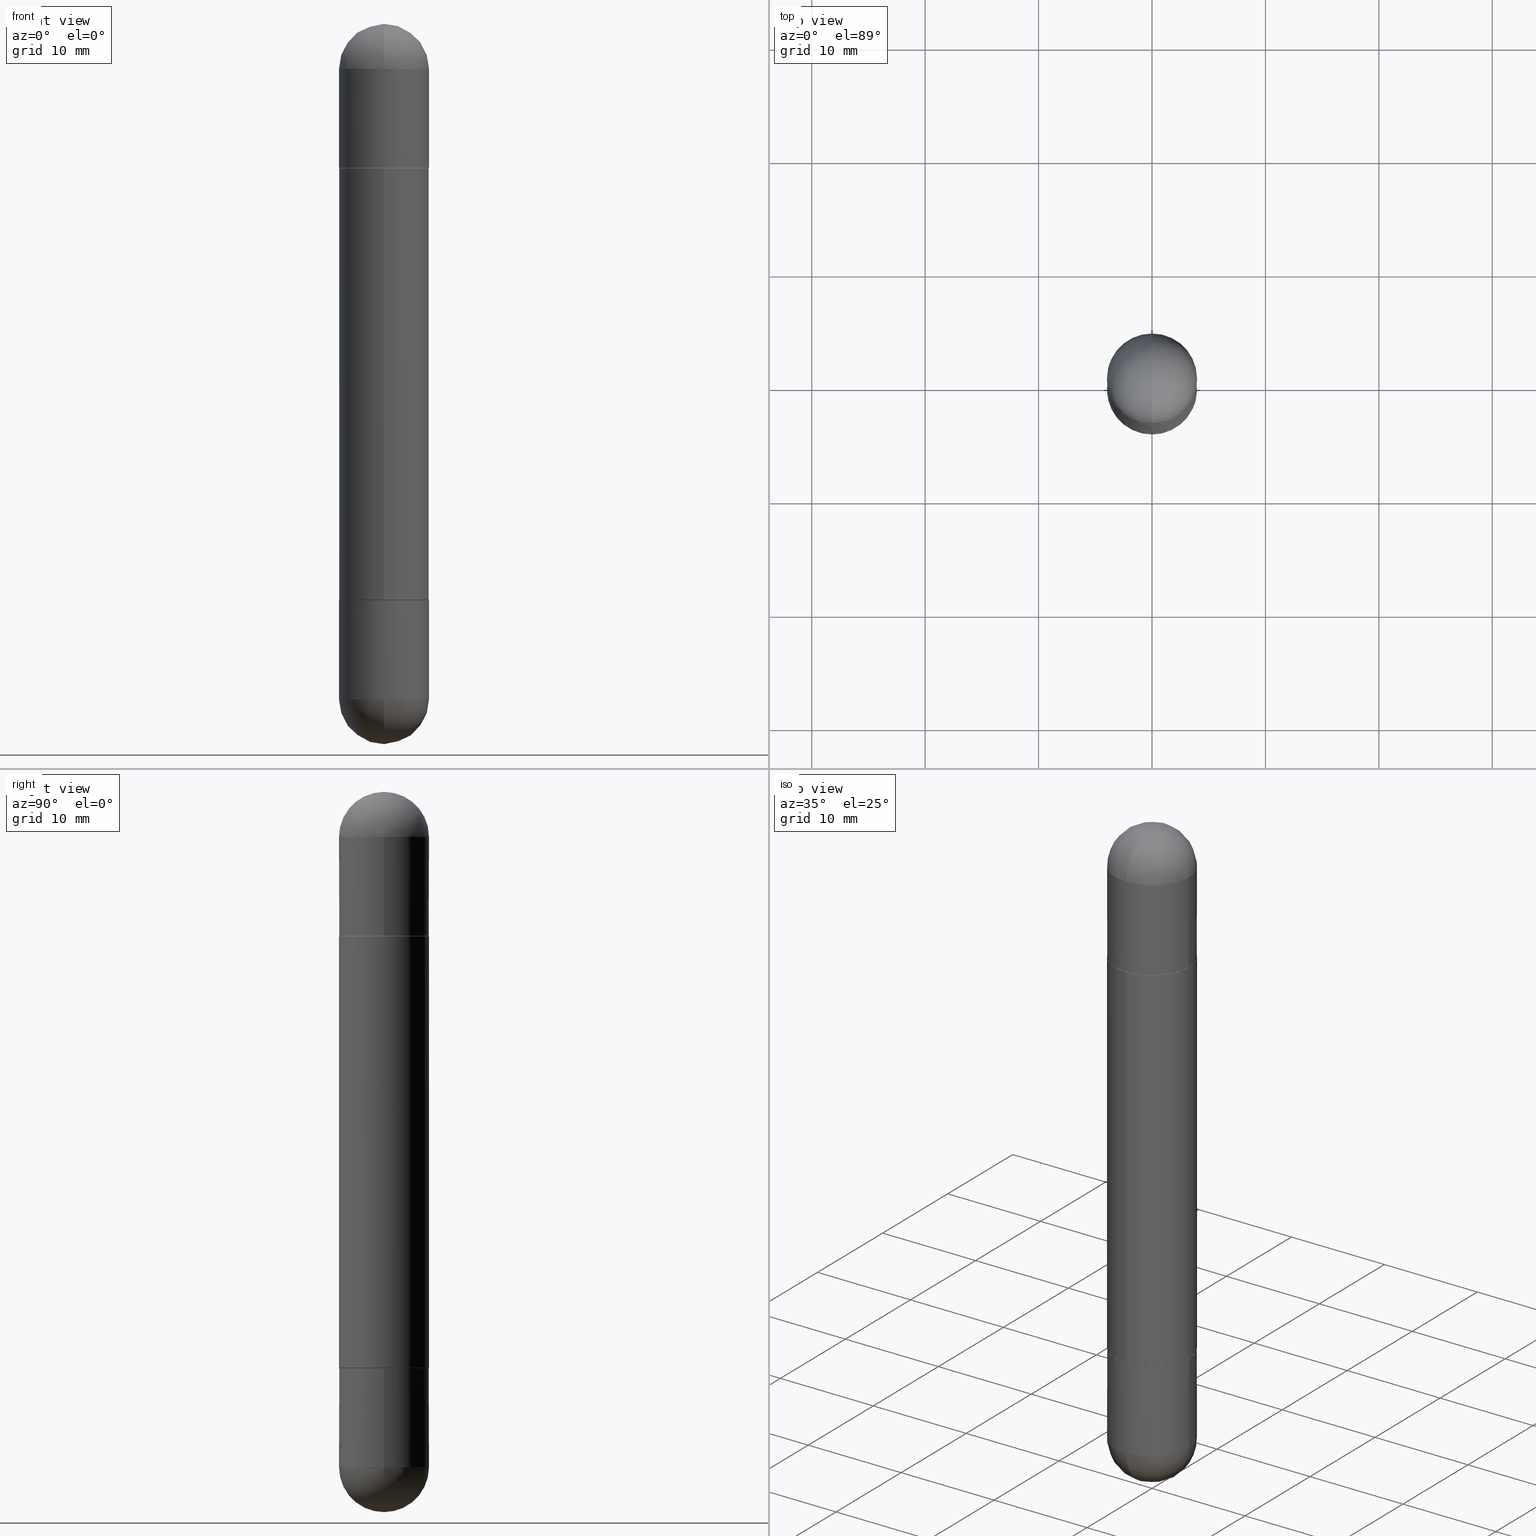
[diagram: canonical four-view strip — front | top / right | iso, engineering-drawing reading convention]
A machine part, canonical four-view strip (front | top / right | iso — engineering-drawing reading convention). The complete STEP part file that produces these views, byte-faithful:
ISO-10303-21;
HEADER;
FILE_DESCRIPTION (( 'STEP AP203' ),
    '1' );
FILE_NAME ('31434.STEP',
    '2024-03-01T12:41:45',
    ( '' ),
    ( '' ),
    'SwSTEP 2.0',
    'SolidWorks 2023',
    '' );
FILE_SCHEMA (( 'CONFIG_CONTROL_DESIGN' ));
ENDSEC;

DATA;
#1 = VERTEX_POINT ( 'NONE', #408 ) ;
#2 = EDGE_CURVE ( 'NONE', #657, #92, #762, .T. ) ;
#3 = LINE ( 'NONE', #633, #66 ) ;
#4 = EDGE_CURVE ( 'NONE', #322, #37, #410, .T. ) ;
#5 = ORIENTED_EDGE ( 'NONE', *, *, #4, .F. ) ;
#6 = AXIS2_PLACEMENT_3D ( 'NONE', #73, #405, #706 ) ;
#7 = FACE_OUTER_BOUND ( 'NONE', #117, .T. ) ;
#8 = CIRCLE ( 'NONE', #326, 0.1562500000000000000 ) ;
#9 = CONICAL_SURFACE ( 'NONE', #479, 0.1552499999999999991, 0.7853981633974141952 ) ;
#10 = ORIENTED_EDGE ( 'NONE', *, *, #284, .F. ) ;
#11 = DIRECTION ( 'NONE',  ( 2.445468806185136597E-29, -3.491481338843145583E-15, 1.000000000000000000 ) ) ;
#12 = EDGE_CURVE ( 'NONE', #739, #597, #514, .T. ) ;
#13 = FACE_OUTER_BOUND ( 'NONE', #234, .T. ) ;
#14 = CALENDAR_DATE ( 2024, 1, 3 ) ;
#15 = PRODUCT_DEFINITION ( 'UNKNOWN', '', #136, #331 ) ;
#16 = CARTESIAN_POINT ( 'NONE',  ( 5.731567514496413899E-29, -8.183159387913622595E-15, -0.1562500000000005551 ) ) ;
#17 = CARTESIAN_POINT ( 'NONE',  ( 5.400447736582527652E-29, -8.657341756053672891E-15, -0.1562500000000005551 ) ) ;
#18 = CARTESIAN_POINT ( 'NONE',  ( 4.890937612370273194E-29, -6.982962677686291165E-15, -0.5000000000000006661 ) ) ;
#19 = CONICAL_SURFACE ( 'NONE', #383, 0.1552499999999999991, 0.7853981633974141952 ) ;
#20 = AXIS2_PLACEMENT_3D ( 'NONE', #22, #161, #673 ) ;
#21 = CARTESIAN_POINT ( 'NONE',  ( 4.890937612370273194E-29, -6.982962677686291165E-15, -0.5000000000000006661 ) ) ;
#22 = CARTESIAN_POINT ( 'NONE',  ( 0.000000000000000000, 0.000000000000000000, -2.500000000000000444 ) ) ;
#23 = DIRECTION ( 'NONE',  ( -2.445468806185136597E-29, 3.491481338843145583E-15, 1.000000000000000000 ) ) ;
#24 = ADVANCED_FACE ( 'NONE', ( #348 ), #592, .F. ) ;
#25 = COORDINATED_UNIVERSAL_TIME_OFFSET ( 5, 0, .BEHIND. ) ;
#26 = DIRECTION ( 'NONE',  ( -6.982962677686265922E-15, -1.000000000000000000, 0.000000000000000000 ) ) ;
#27 = CARTESIAN_POINT ( 'NONE',  ( 4.890937612370273194E-29, -6.982962677686291165E-15, -0.5000000000000006661 ) ) ;
#28 = CARTESIAN_POINT ( 'NONE',  ( 1.091087918388527886E-15, 0.1562499999999930334, -0.5000000000000001110 ) ) ;
#29 = APPLICATION_CONTEXT ( 'configuration controlled 3d designs of mechanical parts and assemblies' ) ;
#30 = CLOSED_SHELL ( 'NONE', ( #89, #510, #610, #95, #647 ) ) ;
#31 = AXIS2_PLACEMENT_3D ( 'NONE', #18, #212, #468 ) ;
#32 = VERTEX_POINT ( 'NONE', #68 ) ;
#33 = CYLINDRICAL_SURFACE ( 'NONE', #451, 0.1562500000000000000 ) ;
#34 = DIRECTION ( 'NONE',  ( -6.982962677686265922E-15, -1.000000000000000000, 3.496765431890250609E-15 ) ) ;
#35 = EDGE_CURVE ( 'NONE', #354, #131, #612, .T. ) ;
#36 = CARTESIAN_POINT ( 'NONE',  ( 4.891809385690355720E-29, -6.981714248673675961E-15, -0.5000000000000006661 ) ) ;
#37 = VERTEX_POINT ( 'NONE', #330 ) ;
#38 = CC_DESIGN_PERSON_AND_ORGANIZATION_ASSIGNMENT ( #604, #591, ( #15 ) ) ;
#39 = ORIENTED_EDGE ( 'NONE', *, *, #548, .F. ) ;
#40 = DIRECTION ( 'NONE',  ( 1.000000000000000000, -6.982962677686262766E-15, 0.000000000000000000 ) ) ;
#41 = CARTESIAN_POINT ( 'NONE',  ( 4.891809385690356841E-29, -6.981714248673676749E-15, -0.5000000000000004441 ) ) ;
#42 = CIRCLE ( 'NONE', #151, 0.1562500000000000000 ) ;
#43 = ORIENTED_EDGE ( 'NONE', *, *, #365, .F. ) ;
#44 = DIRECTION ( 'NONE',  ( -2.445904692845178140E-29, 3.490857124336838375E-15, 1.000000000000000000 ) ) ;
#45 = DIRECTION ( 'NONE',  ( 1.000000000000000000, -6.982962677686262766E-15, 0.000000000000000000 ) ) ;
#46 = EDGE_LOOP ( 'NONE', ( #189, #570, #107, #465 ) ) ;
#47 = EDGE_CURVE ( 'NONE', #231, #501, #355, .T. ) ;
#48 = CARTESIAN_POINT ( 'NONE',  ( 5.731567514496413899E-29, -8.183159387913622595E-15, -0.1562500000000005551 ) ) ;
#49 = FACE_OUTER_BOUND ( 'NONE', #643, .T. ) ;
#50 = ORIENTED_EDGE ( 'NONE', *, *, #784, .T. ) ;
#51 = DIRECTION ( 'NONE',  ( -2.445468806185136597E-29, 3.491481338843145583E-15, -1.000000000000000000 ) ) ;
#52 = ORIENTED_EDGE ( 'NONE', *, *, #448, .T. ) ;
#53 = AXIS2_PLACEMENT_3D ( 'NONE', #36, #294, #554 ) ;
#54 = DIRECTION ( 'NONE',  ( -2.445904692845178140E-29, 3.490857124336838375E-15, -1.000000000000000000 ) ) ;
#55 = CC_DESIGN_APPROVAL ( #401, ( #136 ) ) ;
#56 = EDGE_CURVE ( 'NONE', #597, #338, #474, .T. ) ;
#57 = ORIENTED_EDGE ( 'NONE', *, *, #159, .F. ) ;
#58 = CYLINDRICAL_SURFACE ( 'NONE', #426, 0.1562500000000000000 ) ;
#59 = EDGE_LOOP ( 'NONE', ( #241, #576 ) ) ;
#60 = CARTESIAN_POINT ( 'NONE',  ( 4.889363480997510794E-29, -6.978223391549339583E-15, -0.5010000000000007780 ) ) ;
#61 = ORIENTED_EDGE ( 'NONE', *, *, #221, .T. ) ;
#62 = AXIS2_PLACEMENT_3D ( 'NONE', #79, #213, #719 ) ;
#63 = EDGE_CURVE ( 'NONE', #623, #492, #814, .T. ) ;
#64 = FACE_OUTER_BOUND ( 'NONE', #565, .T. ) ;
#65 = AXIS2_PLACEMENT_3D ( 'NONE', #714, #271, #358 ) ;
#66 = VECTOR ( 'NONE', #312, 39.37007874015748854 ) ;
#67 = LINE ( 'NONE', #127, #598 ) ;
#68 = CARTESIAN_POINT ( 'NONE',  ( 1.071952812151852491E-15, 0.1562499999999933109, -0.5010000000000002229 ) ) ;
#69 = LENGTH_MEASURE_WITH_UNIT ( LENGTH_MEASURE( 0.02539999999999999897 ), #263 );
#70 = ORIENTED_EDGE ( 'NONE', *, *, #655, .F. ) ;
#71 = PERSON_AND_ORGANIZATION ( #369, #676 ) ;
#72 = PLANE ( 'NONE',  #111 ) ;
#73 = CARTESIAN_POINT ( 'NONE',  ( 4.891809385690356841E-29, -6.981714248673676749E-15, -2.000000000000000444 ) ) ;
#74 = PERSON_AND_ORGANIZATION ( #369, #676 ) ;
#75 = FACE_OUTER_BOUND ( 'NONE', #303, .T. ) ;
#76 = AXIS2_PLACEMENT_3D ( 'NONE', #601, #142, #733 ) ;
#77 = AXIS2_PLACEMENT_3D ( 'NONE', #208, #298, #748 ) ;
#78 = EDGE_CURVE ( 'NONE', #507, #249, #180, .T. ) ;
#79 = CARTESIAN_POINT ( 'NONE',  ( 3.057380866056473516E-29, -4.363571405421049546E-15, -1.250000000000000222 ) ) ;
#80 = DATE_AND_TIME ( #470, #506 ) ;
#81 = DIRECTION ( 'NONE',  ( 1.000000000000000000, -6.982962677686262766E-15, 0.000000000000000000 ) ) ;
#82 = DIRECTION ( 'NONE',  ( 1.000000000000000000, -6.982962677686265922E-15, 4.883557194083112340E-29 ) ) ;
#83 = PLANE ( 'NONE',  #624 ) ;
#84 = DIRECTION ( 'NONE',  ( -1.000000000000000000, 6.982962677686265922E-15, 4.883557194083112340E-29 ) ) ;
#85 = PERSON_AND_ORGANIZATION ( #369, #676 ) ;
#86 = FACE_OUTER_BOUND ( 'NONE', #798, .T. ) ;
#87 = EDGE_LOOP ( 'NONE', ( #509, #297, #631, #5 ) ) ;
#88 = CARTESIAN_POINT ( 'NONE',  ( -0.1562500000000000000, 1.110223024625156540E-15, -7.685836078523291160E-30 ) ) ;
#89 = ADVANCED_FACE ( 'NONE', ( #536 ), #216, .T. ) ;
#90 = DIRECTION ( 'NONE',  ( 6.982962677686265922E-15, 1.000000000000000000, 3.496765431890251398E-15 ) ) ;
#91 = DIRECTION ( 'NONE',  ( -2.445468806185136597E-29, 3.491481338843145583E-15, 1.000000000000000000 ) ) ;
#92 = VERTEX_POINT ( 'NONE', #153 ) ;
#93 = AXIS2_PLACEMENT_3D ( 'NONE', #484, #670, #413 ) ;
#94 = AXIS2_PLACEMENT_3D ( 'NONE', #104, #368, #128 ) ;
#95 = ADVANCED_FACE ( 'NONE', ( #666 ), #83, .F. ) ;
#96 = SECURITY_CLASSIFICATION ( '', '', #351 ) ;
#97 = EDGE_LOOP ( 'NONE', ( #200, #119, #563, #447 ) ) ;
#98 = APPROVAL ( #494, 'UNSPECIFIED' ) ;
#99 = LINE ( 'NONE', #170, #385 ) ;
#100 = ORIENTED_EDGE ( 'NONE', *, *, #500, .F. ) ;
#101 = CARTESIAN_POINT ( 'NONE',  ( 1.091087918388535577E-15, 0.1562499999999916733, -0.1562500000000000000 ) ) ;
#102 = ORIENTED_EDGE ( 'NONE', *, *, #56, .T. ) ;
#103 = CALENDAR_DATE ( 2024, 1, 3 ) ;
#104 = CARTESIAN_POINT ( 'NONE',  ( 4.891809385690356841E-29, -6.981714248673676749E-15, -2.000000000000000444 ) ) ;
#105 = UNCERTAINTY_MEASURE_WITH_UNIT (LENGTH_MEASURE( 1.000000000000000082E-05 ), #334, 'distance_accuracy_value', 'NONE');
#106 = DIRECTION ( 'NONE',  ( 2.445468806185136597E-29, -3.491481338843145583E-15, 1.000000000000000000 ) ) ;
#107 = ORIENTED_EDGE ( 'NONE', *, *, #258, .T. ) ;
#108 = DIRECTION ( 'NONE',  ( -1.000000000000000000, 6.982962677686265922E-15, -4.883557194083112340E-29 ) ) ;
#109 = CARTESIAN_POINT ( 'NONE',  ( 5.731567514496413899E-29, -8.183159387913622595E-15, -0.1562500000000005551 ) ) ;
#110 = ADVANCED_FACE ( 'NONE', ( #461 ), #523, .T. ) ;
#111 = AXIS2_PLACEMENT_3D ( 'NONE', #28, #219, #595 ) ;
#112 = ORIENTED_EDGE ( 'NONE', *, *, #680, .T. ) ;
#113 = AXIS2_PLACEMENT_3D ( 'NONE', #125, #459, #770 ) ;
#114 = DIRECTION ( 'NONE',  ( -2.445904692845178140E-29, 3.490857124336838375E-15, 1.000000000000000000 ) ) ;
#115 = ORIENTED_EDGE ( 'NONE', *, *, #729, .F. ) ;
#116 = DIRECTION ( 'NONE',  ( -2.445904692845177860E-29, 3.490857124336837980E-15, -1.000000000000000000 ) ) ;
#117 = EDGE_LOOP ( 'NONE', ( #618, #759, #803, #122 ) ) ;
#118 = LINE ( 'NONE', #683, #753 ) ;
#119 = ORIENTED_EDGE ( 'NONE', *, *, #638, .T. ) ;
#120 = ADVANCED_FACE ( 'NONE', ( #13 ), #419, .F. ) ;
#121 = LINE ( 'NONE', #251, #287 ) ;
#122 = ORIENTED_EDGE ( 'NONE', *, *, #56, .F. ) ;
#123 = AXIS2_PLACEMENT_3D ( 'NONE', #41, #302, #237 ) ;
#124 = AXIS2_PLACEMENT_3D ( 'NONE', #693, #380, #291 ) ;
#125 = CARTESIAN_POINT ( 'NONE',  ( 5.400447736582527652E-29, -8.657341756053672891E-15, -2.343750000000000000 ) ) ;
#126 = ORIENTED_EDGE ( 'NONE', *, *, #634, .F. ) ;
#127 = CARTESIAN_POINT ( 'NONE',  ( 1.071952812151802595E-15, 0.1562500000000001388, -2.500000000000000000 ) ) ;
#128 = DIRECTION ( 'NONE',  ( -6.982962677686265922E-15, -1.000000000000000000, 3.519288880726909138E-15 ) ) ;
#129 = EDGE_LOOP ( 'NONE', ( #177, #61, #757, #126 ) ) ;
#130 = DIRECTION ( 'NONE',  ( -6.982962677686265922E-15, -1.000000000000000000, -3.519288880726909138E-15 ) ) ;
#131 = VERTEX_POINT ( 'NONE', #160 ) ;
#132 = AXIS2_PLACEMENT_3D ( 'NONE', #21, #660, #272 ) ;
#133 = AXIS2_PLACEMENT_3D ( 'NONE', #394, #266, #723 ) ;
#134 = DIRECTION ( 'NONE',  ( 1.000000000000000000, -6.982962677686262766E-15, 0.000000000000000000 ) ) ;
#135 = CIRCLE ( 'NONE', #688, 0.1562500000000002776 ) ;
#136 = PRODUCT_DEFINITION_FORMATION_WITH_SPECIFIED_SOURCE ( 'ANY', '', #520, .NOT_KNOWN. ) ;
#137 = PERSON_AND_ORGANIZATION ( #369, #676 ) ;
#138 = CARTESIAN_POINT ( 'NONE',  ( 4.891809385690355720E-29, -6.981714248673675961E-15, -2.000000000000000000 ) ) ;
#139 = DIRECTION ( 'NONE',  ( -1.000000000000000000, 6.982962677686265922E-15, 4.883557194083112340E-29 ) ) ;
#140 = DIRECTION ( 'NONE',  ( -4.937700262164378437E-15, -0.7071067811865208164, -0.7071067811865739960 ) ) ;
#141 =( NAMED_UNIT ( * ) PLANE_ANGLE_UNIT ( ) SI_UNIT ( $, .RADIAN. ) );
#142 = DIRECTION ( 'NONE',  ( -2.445904692845178140E-29, 3.490857124336838375E-15, -1.000000000000000000 ) ) ;
#143 = ADVANCED_FACE ( 'NONE', ( #156 ), #214, .T. ) ;
#144 = LINE ( 'NONE', #88, #709 ) ;
#145 = DIRECTION ( 'NONE',  ( -1.000000000000000000, 6.982962677686265922E-15, -4.876176775795935793E-29 ) ) ;
#146 = ADVANCED_FACE ( 'NONE', ( #669 ), #538, .F. ) ;
#147 = CARTESIAN_POINT ( 'NONE',  ( -1.091087918388432039E-15, -0.1562500000000072442, -0.5010000000000013332 ) ) ;
#148 = DIRECTION ( 'NONE',  ( 1.000000000000000000, -6.982962677686262766E-15, 0.000000000000000000 ) ) ;
#149 = AXIS2_PLACEMENT_3D ( 'NONE', #469, #344, #145 ) ;
#150 = CARTESIAN_POINT ( 'NONE',  ( 0.1562500000000000000, -1.091087918388479174E-15, -2.500000000000000444 ) ) ;
#151 = AXIS2_PLACEMENT_3D ( 'NONE', #343, #91, #421 ) ;
#152 = CONICAL_SURFACE ( 'NONE', #675, 0.1552499999999999991, 0.7853981633974141952 ) ;
#153 = CARTESIAN_POINT ( 'NONE',  ( -0.1562500000000000000, -6.511108220648155468E-15, -0.5000000000000006661 ) ) ;
#154 = DIRECTION ( 'NONE',  ( 0.000000000000000000, 0.000000000000000000, 1.000000000000000000 ) ) ;
#155 = PERSON_AND_ORGANIZATION_ROLE ( 'creator' ) ;
#156 = FACE_OUTER_BOUND ( 'NONE', #165, .T. ) ;
#157 = CARTESIAN_POINT ( 'NONE',  ( 5.400447736582527652E-29, -8.657341756053672891E-15, -0.1562500000000005551 ) ) ;
#158 = DIRECTION ( 'NONE',  ( 6.982962677686265922E-15, 1.000000000000000000, -3.496765431890251398E-15 ) ) ;
#159 = EDGE_CURVE ( 'NONE', #549, #381, #8, .T. ) ;
#160 = CARTESIAN_POINT ( 'NONE',  ( 1.091087918388535577E-15, 0.1562499999999916733, -0.1562500000000000000 ) ) ;
#161 = DIRECTION ( 'NONE',  ( -2.445468806185136597E-29, 3.491481338843145583E-15, -1.000000000000000000 ) ) ;
#162 = ORIENTED_EDGE ( 'NONE', *, *, #323, .F. ) ;
#163 = CC_DESIGN_DATE_AND_TIME_ASSIGNMENT ( #786, #217, ( #15 ) ) ;
#164 = CARTESIAN_POINT ( 'NONE',  ( -0.1562500000000000000, -6.472838008174799945E-15, -2.000000000000000000 ) ) ;
#165 = EDGE_LOOP ( 'NONE', ( #179, #635, #619, #438 ) ) ;
#166 = AXIS2_PLACEMENT_3D ( 'NONE', #671, #730, #223 ) ;
#167 = VECTOR ( 'NONE', #615, 39.37007874015748854 ) ;
#168 = LOCAL_TIME ( 7, 41, 45.00000000000000000, #732 ) ;
#169 = DIRECTION ( 'NONE',  ( -2.445904692845177860E-29, 3.490857124336837980E-15, -1.000000000000000000 ) ) ;
#170 = CARTESIAN_POINT ( 'NONE',  ( -0.1562500000000000000, 1.071952812151801807E-15, -2.500000000000000444 ) ) ;
#171 = ORIENTED_EDGE ( 'NONE', *, *, #376, .F. ) ;
#172 = ADVANCED_FACE ( 'NONE', ( #86 ), #220, .T. ) ;
#173 = DIRECTION ( 'NONE',  ( 2.445904692845178140E-29, -3.490857124336838375E-15, 1.000000000000000000 ) ) ;
#174 = ORIENTED_EDGE ( 'NONE', *, *, #350, .T. ) ;
#175 = DIRECTION ( 'NONE',  ( 1.000000000000000000, -6.982962677686269077E-15, 0.000000000000000000 ) ) ;
#176 = ADVANCED_FACE ( 'NONE', ( #787 ), #19, .T. ) ;
#177 = ORIENTED_EDGE ( 'NONE', *, *, #47, .T. ) ;
#178 = DIRECTION ( 'NONE',  ( -6.982962677686265922E-15, -1.000000000000000000, -3.496765431890253764E-15 ) ) ;
#179 = ORIENTED_EDGE ( 'NONE', *, *, #680, .F. ) ;
#180 = CIRCLE ( 'NONE', #203, 0.1562500000000000000 ) ;
#181 = AXIS2_PLACEMENT_3D ( 'NONE', #109, #627, #45 ) ;
#182 = CONICAL_SURFACE ( 'NONE', #708, 0.1552499999999999991, 0.7853981633974141952 ) ;
#183 = ORIENTED_EDGE ( 'NONE', *, *, #187, .T. ) ;
#184 = AXIS2_PLACEMENT_3D ( 'NONE', #702, #644, #324 ) ;
#185 = DIRECTION ( 'NONE',  ( 6.982962677686265922E-15, 1.000000000000000000, 3.496765431890251398E-15 ) ) ;
#186 = ORIENTED_EDGE ( 'NONE', *, *, #386, .T. ) ;
#187 = EDGE_CURVE ( 'NONE', #453, #289, #314, .T. ) ;
#188 = DIRECTION ( 'NONE',  ( 2.445904692845178140E-29, -3.490857124336838375E-15, 1.000000000000000000 ) ) ;
#189 = ORIENTED_EDGE ( 'NONE', *, *, #386, .F. ) ;
#190 = APPROVAL ( #781, 'UNSPECIFIED' ) ;
#191 = DIRECTION ( 'NONE',  ( -2.445468806185136877E-29, 3.491481338843145188E-15, -1.000000000000000000 ) ) ;
#192 = ORIENTED_EDGE ( 'NONE', *, *, #4, .T. ) ;
#193 = CLOSED_SHELL ( 'NONE', ( #307, #172, #332, #632, #750, #532 ) ) ;
#194 = VECTOR ( 'NONE', #116, 39.37007874015748143 ) ;
#195 = VECTOR ( 'NONE', #659, 39.37007874015748143 ) ;
#196 = DIRECTION ( 'NONE',  ( -6.982962677686265922E-15, -1.000000000000000000, -3.496765431890250609E-15 ) ) ;
#197 = ORIENTED_EDGE ( 'NONE', *, *, #564, .T. ) ;
#198 = CARTESIAN_POINT ( 'NONE',  ( 1.068522563152965797E-15, 0.1552499999999930325, -0.4999999999999998335 ) ) ;
#199 = ADVANCED_FACE ( 'NONE', ( #274 ), #782, .T. ) ;
#200 = ORIENTED_EDGE ( 'NONE', *, *, #221, .F. ) ;
#201 = CARTESIAN_POINT ( 'NONE',  ( 5.789233224183170584E-29, -9.193318162129576161E-15, -3.073328992872296367E-16 ) ) ;
#202 = ORIENTED_EDGE ( 'NONE', *, *, #667, .F. ) ;
#203 = AXIS2_PLACEMENT_3D ( 'NONE', #27, #458, #276 ) ;
#204 = AXIS2_PLACEMENT_3D ( 'NONE', #417, #471, #654 ) ;
#205 = PERSON_AND_ORGANIZATION ( #369, #676 ) ;
#206 = CARTESIAN_POINT ( 'NONE',  ( 5.731567514496413899E-29, -8.183159387913622595E-15, -0.1562500000000005551 ) ) ;
#207 = CIRCLE ( 'NONE', #496, 0.1562500000000000000 ) ;
#208 = CARTESIAN_POINT ( 'NONE',  ( 5.731567514496413899E-29, -8.183159387913622595E-15, -0.1562500000000005551 ) ) ;
#209 = DIRECTION ( 'NONE',  ( 2.445468806185136597E-29, -3.491481338843145583E-15, 1.000000000000000000 ) ) ;
#210 = ADVANCED_FACE ( 'NONE', ( #282 ), #605, .T. ) ;
#211 = DIRECTION ( 'NONE',  ( -2.445904692845178140E-29, 3.490857124336838375E-15, 1.000000000000000000 ) ) ;
#212 = DIRECTION ( 'NONE',  ( 2.445468806185136597E-29, -3.491481338843145583E-15, 1.000000000000000000 ) ) ;
#213 = DIRECTION ( 'NONE',  ( -0.000000000000000000, -0.000000000000000000, -1.000000000000000000 ) ) ;
#214 = CYLINDRICAL_SURFACE ( 'NONE', #204, 0.1562500000000001388 ) ;
#215 = DIRECTION ( 'NONE',  ( 1.000000000000000000, -6.860497997771530774E-15, -4.840798879624142912E-29 ) ) ;
#216 = CYLINDRICAL_SURFACE ( 'NONE', #133, 0.1562500000000000000 ) ;
#217 = DATE_TIME_ROLE ( 'creation_date' ) ;
#218 = CARTESIAN_POINT ( 'NONE',  ( 5.731567514496413899E-29, -8.183159387913622595E-15, -2.343750000000000000 ) ) ;
#219 = DIRECTION ( 'NONE',  ( 2.438088387897960049E-29, -3.491481338843145188E-15, 1.000000000000000000 ) ) ;
#220 = CONICAL_SURFACE ( 'NONE', #76, 0.1552499999999999991, 0.7853981633974141952 ) ;
#221 = EDGE_CURVE ( 'NONE', #501, #629, #792, .T. ) ;
#222 = CIRCLE ( 'NONE', #77, 0.1562500000000000000 ) ;
#223 = DIRECTION ( 'NONE',  ( -6.982962677686265922E-15, -1.000000000000000000, -3.490857124336837980E-15 ) ) ;
#224 = LINE ( 'NONE', #611, #686 ) ;
#225 = DIRECTION ( 'NONE',  ( 1.000000000000000000, 0.000000000000000000, 0.000000000000000000 ) ) ;
#226 = CARTESIAN_POINT ( 'NONE',  ( 4.889363480997510794E-29, -6.978223391549339583E-15, -1.998999999999999888 ) ) ;
#227 = CARTESIAN_POINT ( 'NONE',  ( 1.071952812151852491E-15, 0.1562499999999933109, -0.5010000000000002229 ) ) ;
#228 = CC_DESIGN_PERSON_AND_ORGANIZATION_ASSIGNMENT ( #205, #609, ( #96 ) ) ;
#229 = EDGE_LOOP ( 'NONE', ( #641, #813 ) ) ;
#230 = CARTESIAN_POINT ( 'NONE',  ( 1.071952812151833755E-15, 0.1562499999999933109, -1.999000000000000554 ) ) ;
#231 = VERTEX_POINT ( 'NONE', #346 ) ;
#232 = ORIENTED_EDGE ( 'NONE', *, *, #567, .T. ) ;
#233 = DIRECTION ( 'NONE',  ( -2.445468806185136877E-29, 3.491481338843145188E-15, -1.000000000000000000 ) ) ;
#234 = EDGE_LOOP ( 'NONE', ( #254, #586 ) ) ;
#235 = CIRCLE ( 'NONE', #374, 0.1552499999999999991 ) ;
#236 = AXIS2_PLACEMENT_3D ( 'NONE', #304, #108, #795 ) ;
#237 = DIRECTION ( 'NONE',  ( -6.982962677686265922E-15, -1.000000000000000000, -3.519288880726909138E-15 ) ) ;
#238 = ORIENTED_EDGE ( 'NONE', *, *, #35, .T. ) ;
#239 = EDGE_CURVE ( 'NONE', #381, #453, #724, .T. ) ;
#240 = SPHERICAL_SURFACE ( 'NONE', #650, 0.1562500000000002498 ) ;
#241 = ORIENTED_EDGE ( 'NONE', *, *, #389, .T. ) ;
#242 = FACE_OUTER_BOUND ( 'NONE', #442, .T. ) ;
#243 = ORIENTED_EDGE ( 'NONE', *, *, #239, .T. ) ;
#244 = ORIENTED_EDGE ( 'NONE', *, *, #692, .T. ) ;
#245 = EDGE_CURVE ( 'NONE', #629, #295, #775, .T. ) ;
#246 = CARTESIAN_POINT ( 'NONE',  ( 5.400447736582527652E-29, -8.657341756053672891E-15, -0.1562500000000005551 ) ) ;
#247 = ADVANCED_FACE ( 'NONE', ( #672 ), #33, .T. ) ;
#248 = CIRCLE ( 'NONE', #124, 0.1562500000000002498 ) ;
#249 = VERTEX_POINT ( 'NONE', #467 ) ;
#250 =( GEOMETRIC_REPRESENTATION_CONTEXT ( 3 ) GLOBAL_UNCERTAINTY_ASSIGNED_CONTEXT ( ( #105 ) ) GLOBAL_UNIT_ASSIGNED_CONTEXT ( ( #334, #141, #466 ) ) REPRESENTATION_CONTEXT ( 'NONE', 'WORKASPACE' ) );
#251 = CARTESIAN_POINT ( 'NONE',  ( -1.091087918388479962E-15, -0.1562500000000001388, -2.500000000000001332 ) ) ;
#252 = ORIENTED_EDGE ( 'NONE', *, *, #771, .F. ) ;
#253 = DIRECTION ( 'NONE',  ( 2.445904692845178140E-29, -3.490857124336838375E-15, 1.000000000000000000 ) ) ;
#254 = ORIENTED_EDGE ( 'NONE', *, *, #667, .T. ) ;
#255 = DIRECTION ( 'NONE',  ( -2.445468806185136597E-29, 3.491481338843145583E-15, -1.000000000000000000 ) ) ;
#256 = EDGE_LOOP ( 'NONE', ( #751, #557, #363, #43, #300 ) ) ;
#257 = AXIS2_PLACEMENT_3D ( 'NONE', #664, #352, #81 ) ;
#258 = EDGE_CURVE ( 'NONE', #319, #645, #526, .T. ) ;
#259 = LINE ( 'NONE', #454, #765 ) ;
#260 = EDGE_LOOP ( 'NONE', ( #812, #704, #691, #238 ) ) ;
#261 = DIRECTION ( 'NONE',  ( -2.445468806185136597E-29, 3.491481338843145583E-15, 1.000000000000000000 ) ) ;
#262 = EDGE_LOOP ( 'NONE', ( #171, #316, #566, #490 ) ) ;
#263 =( LENGTH_UNIT ( ) NAMED_UNIT ( * ) SI_UNIT ( $, .METRE. ) );
#264 = FACE_OUTER_BOUND ( 'NONE', #46, .T. ) ;
#265 = EDGE_CURVE ( 'NONE', #521, #1, #613, .T. ) ;
#266 = DIRECTION ( 'NONE',  ( -2.445468806185136597E-29, 3.491481338843145583E-15, -1.000000000000000000 ) ) ;
#267 = AXIS2_PLACEMENT_3D ( 'NONE', #206, #106, #804 ) ;
#268 = DIRECTION ( 'NONE',  ( 1.000000000000000000, -6.982962677686265922E-15, -4.883557194083112340E-29 ) ) ;
#269 = CIRCLE ( 'NONE', #725, 0.1562500000000001388 ) ;
#270 = APPROVAL_PERSON_ORGANIZATION ( #544, #190, #663 ) ;
#271 = DIRECTION ( 'NONE',  ( 2.445904692845178140E-29, -3.490857124336838375E-15, 1.000000000000000000 ) ) ;
#272 = DIRECTION ( 'NONE',  ( 1.000000000000000000, -6.982962677686269077E-15, 0.000000000000000000 ) ) ;
#273 = APPLICATION_PROTOCOL_DEFINITION ( 'international standard', 'config_control_design', 1994, #581 ) ;
#274 = FACE_OUTER_BOUND ( 'NONE', #260, .T. ) ;
#275 = CARTESIAN_POINT ( 'NONE',  ( 1.106670310946405735E-15, 0.1552499999999930325, -2.000000000000000888 ) ) ;
#276 = DIRECTION ( 'NONE',  ( 1.000000000000000000, -6.982962677686269077E-15, 0.000000000000000000 ) ) ;
#277 = DIRECTION ( 'NONE',  ( 1.000000000000000000, -6.982962677686266711E-15, 0.000000000000000000 ) ) ;
#278 = DIRECTION ( 'NONE',  ( 1.000000000000000000, -6.982962677686265922E-15, -4.883557194083112340E-29 ) ) ;
#279 = DIRECTION ( 'NONE',  ( -2.445904692845178140E-29, 3.490857124336838375E-15, -1.000000000000000000 ) ) ;
#280 = DIRECTION ( 'NONE',  ( 1.000000000000000000, -6.982962677686262766E-15, 0.000000000000000000 ) ) ;
#281 = PERSON_AND_ORGANIZATION_ROLE ( 'design_supplier' ) ;
#282 = FACE_OUTER_BOUND ( 'NONE', #366, .T. ) ;
#283 = AXIS2_PLACEMENT_3D ( 'NONE', #668, #84, #608 ) ;
#284 = EDGE_CURVE ( 'NONE', #562, #354, #738, .T. ) ;
#285 = CARTESIAN_POINT ( 'NONE',  ( 0.1562500000000000000, -1.091087918388479174E-15, 7.619026212181150377E-30 ) ) ;
#286 = CIRCLE ( 'NONE', #396, 0.1562500000000002776 ) ;
#287 = VECTOR ( 'NONE', #388, 39.37007874015748143 ) ;
#288 = CARTESIAN_POINT ( 'NONE',  ( 4.891809385690356841E-29, -6.981714248673676749E-15, -0.5000000000000004441 ) ) ;
#289 = VERTEX_POINT ( 'NONE', #362 ) ;
#290 = CARTESIAN_POINT ( 'NONE',  ( 0.000000000000000000, 0.000000000000000000, 0.000000000000000000 ) ) ;
#291 = DIRECTION ( 'NONE',  ( 6.860497997771530774E-15, 1.000000000000000000, 0.000000000000000000 ) ) ;
#292 = CARTESIAN_POINT ( 'NONE',  ( 0.000000000000000000, 0.000000000000000000, -2.500000000000000444 ) ) ;
#293 = ORIENTED_EDGE ( 'NONE', *, *, #548, .T. ) ;
#294 = DIRECTION ( 'NONE',  ( -2.445904692845177860E-29, 3.490857124336837980E-15, -1.000000000000000000 ) ) ;
#295 = VERTEX_POINT ( 'NONE', #555 ) ;
#296 = EDGE_CURVE ( 'NONE', #817, #37, #441, .T. ) ;
#297 = ORIENTED_EDGE ( 'NONE', *, *, #457, .F. ) ;
#298 = DIRECTION ( 'NONE',  ( 2.445468806185136597E-29, -3.491481338843145583E-15, 1.000000000000000000 ) ) ;
#299 = CLOSED_SHELL ( 'NONE', ( #806, #199, #210, #409, #493 ) ) ;
#300 = ORIENTED_EDGE ( 'NONE', *, *, #258, .F. ) ;
#301 = AXIS2_PLACEMENT_3D ( 'NONE', #157, #139, #26 ) ;
#302 = DIRECTION ( 'NONE',  ( 2.445904692845178140E-29, -3.490857124336838375E-15, 1.000000000000000000 ) ) ;
#303 = EDGE_LOOP ( 'NONE', ( #701, #112, #801, #517 ) ) ;
#304 = CARTESIAN_POINT ( 'NONE',  ( 5.400447736582527652E-29, -8.657341756053672891E-15, -2.343750000000000000 ) ) ;
#305 = ORIENTED_EDGE ( 'NONE', *, *, #78, .T. ) ;
#306 = VERTEX_POINT ( 'NONE', #378 ) ;
#307 = ADVANCED_FACE ( 'NONE', ( #49 ), #428, .T. ) ;
#308 = CARTESIAN_POINT ( 'NONE',  ( -1.084104955710744053E-15, -0.1552500000000069658, -0.5000000000000009992 ) ) ;
#309 = ORIENTED_EDGE ( 'NONE', *, *, #487, .F. ) ;
#310 = VERTEX_POINT ( 'NONE', #101 ) ;
#311 = MANIFOLD_SOLID_BREP ( 'Mirror4[3]', #30 ) ;
#312 = DIRECTION ( 'NONE',  ( 4.851104656540797036E-15, 0.7071067811865257013, -0.7071067811865691111 ) ) ;
#313 = EDGE_CURVE ( 'NONE', #32, #322, #67, .T. ) ;
#314 = CIRCLE ( 'NONE', #257, 0.1562500000000000000 ) ;
#315 = VECTOR ( 'NONE', #449, 39.37007874015748143 ) ;
#316 = ORIENTED_EDGE ( 'NONE', *, *, #763, .T. ) ;
#317 = CARTESIAN_POINT ( 'NONE',  ( 0.000000000000000000, 0.000000000000000000, -2.500000000000000444 ) ) ;
#318 = MANIFOLD_SOLID_BREP ( 'Mirror4[1]', #193 ) ;
#319 = VERTEX_POINT ( 'NONE', #556 ) ;
#320 = MANIFOLD_SOLID_BREP ( 'Mirror4[4]', #299 ) ;
#321 = LINE ( 'NONE', #445, #315 ) ;
#322 = VERTEX_POINT ( 'NONE', #744 ) ;
#323 = EDGE_CURVE ( 'NONE', #1, #521, #235, .T. ) ;
#324 = DIRECTION ( 'NONE',  ( 1.000000000000000000, -6.982962677686262766E-15, 0.000000000000000000 ) ) ;
#325 = VERTEX_POINT ( 'NONE', #432 ) ;
#326 = AXIS2_PLACEMENT_3D ( 'NONE', #335, #720, #148 ) ;
#327 = AXIS2_PLACEMENT_3D ( 'NONE', #698, #188, #758 ) ;
#328 = DIRECTION ( 'NONE',  ( -6.982962677686265922E-15, -1.000000000000000000, -3.519288880726909138E-15 ) ) ;
#329 = MANIFOLD_SOLID_BREP ( 'Body-Move/Copy2[1]', #502 ) ;
#330 = CARTESIAN_POINT ( 'NONE',  ( -1.091087918388440322E-15, -0.1562500000000045242, -1.250000000000000222 ) ) ;
#331 = DESIGN_CONTEXT ( 'detailed design', #581, 'design' ) ;
#332 = ADVANCED_FACE ( 'NONE', ( #681 ), #794, .F. ) ;
#333 = ORIENTED_EDGE ( 'NONE', *, *, #323, .T. ) ;
#334 =( CONVERSION_BASED_UNIT ( 'INCH', #69 ) LENGTH_UNIT ( ) NAMED_UNIT ( #577 ) );
#335 = CARTESIAN_POINT ( 'NONE',  ( 5.731567514496413899E-29, -8.183159387913622595E-15, -2.343750000000000000 ) ) ;
#336 = CARTESIAN_POINT ( 'NONE',  ( 1.091087918388535577E-15, 0.1562499999999916733, -2.343750000000000444 ) ) ;
#337 = CC_DESIGN_PERSON_AND_ORGANIZATION_ASSIGNMENT ( #74, #340, ( #520 ) ) ;
#338 = VERTEX_POINT ( 'NONE', #416 ) ;
#339 = AXIS2_PLACEMENT_3D ( 'NONE', #17, #268, #658 ) ;
#340 = PERSON_AND_ORGANIZATION_ROLE ( 'design_owner' ) ;
#341 = DIRECTION ( 'NONE',  ( 5.024295867787889629E-15, 0.7071067811865257013, 0.7071067811865691111 ) ) ;
#342 = AXIS2_PLACEMENT_3D ( 'NONE', #807, #630, #437 ) ;
#343 = CARTESIAN_POINT ( 'NONE',  ( 4.890937612370273194E-29, -6.982962677686291165E-15, -2.000000000000000000 ) ) ;
#344 = DIRECTION ( 'NONE',  ( 2.438088387897960049E-29, -3.491481338843145188E-15, -1.000000000000000000 ) ) ;
#345 = APPROVAL_DATE_TIME ( #80, #190 ) ;
#346 = CARTESIAN_POINT ( 'NONE',  ( -1.084104955710744053E-15, -0.1552500000000069658, -1.999999999999999778 ) ) ;
#347 = FACE_OUTER_BOUND ( 'NONE', #229, .T. ) ;
#348 = FACE_OUTER_BOUND ( 'NONE', #59, .T. ) ;
#349 = CARTESIAN_POINT ( 'NONE',  ( 0.1562500000000000000, -8.674148951188436448E-15, -0.1562500000000005551 ) ) ;
#350 = EDGE_CURVE ( 'NONE', #306, #131, #699, .T. ) ;
#351 = SECURITY_CLASSIFICATION_LEVEL ( 'unclassified' ) ;
#352 = DIRECTION ( 'NONE',  ( -2.445468806185136597E-29, 3.491481338843145583E-15, 1.000000000000000000 ) ) ;
#353 = LINE ( 'NONE', #285, #195 ) ;
#354 = VERTEX_POINT ( 'NONE', #349 ) ;
#355 = CIRCLE ( 'NONE', #6, 0.1552499999999999991 ) ;
#356 = DIRECTION ( 'NONE',  ( 1.000000000000000000, -6.982962677686262766E-15, 0.000000000000000000 ) ) ;
#357 = CIRCLE ( 'NONE', #93, 0.1562500000000002776 ) ;
#358 = DIRECTION ( 'NONE',  ( -6.982962677686265922E-15, -1.000000000000000000, -3.496765431890250609E-15 ) ) ;
#359 = VECTOR ( 'NONE', #679, 39.37007874015748854 ) ;
#360 = ORIENTED_EDGE ( 'NONE', *, *, #423, .F. ) ;
#361 = LOCAL_TIME ( 7, 41, 45.00000000000000000, #364 ) ;
#362 = CARTESIAN_POINT ( 'NONE',  ( -1.110223024625101517E-15, -0.1562500000000085487, -2.343749999999999556 ) ) ;
#363 = ORIENTED_EDGE ( 'NONE', *, *, #414, .T. ) ;
#364 = COORDINATED_UNIVERSAL_TIME_OFFSET ( 5, 0, .BEHIND. ) ;
#365 = EDGE_CURVE ( 'NONE', #645, #507, #224, .T. ) ;
#366 = EDGE_LOOP ( 'NONE', ( #444, #174, #694, #587 ) ) ;
#367 = EDGE_LOOP ( 'NONE', ( #582, #183, #197, #689, #805 ) ) ;
#368 = DIRECTION ( 'NONE',  ( -2.445904692845178140E-29, 3.490857124336838375E-15, 1.000000000000000000 ) ) ;
#369 = PERSON ( 'UNSPECIFIED', 'UNSPECIFIED', 'UNSPECIFIED', ('UNSPECIFIED'), ('UNSPECIFIED'), ('UNSPECIFIED') ) ;
#370 = ORIENTED_EDGE ( 'NONE', *, *, #771, .T. ) ;
#371 = APPROVAL_ROLE ( '' ) ;
#372 = CARTESIAN_POINT ( 'NONE',  ( 4.889363480997510794E-29, -6.978223391549339583E-15, -1.998999999999999888 ) ) ;
#373 = ORIENTED_EDGE ( 'NONE', *, *, #47, .F. ) ;
#374 = AXIS2_PLACEMENT_3D ( 'NONE', #288, #173, #542 ) ;
#375 = AXIS2_PLACEMENT_3D ( 'NONE', #60, #253, #196 ) ;
#376 = EDGE_CURVE ( 'NONE', #682, #381, #800, .T. ) ;
#377 = CARTESIAN_POINT ( 'NONE',  ( -1.071952812151746981E-15, -0.1562500000000085487, -0.1562500000000011102 ) ) ;
#378 = CARTESIAN_POINT ( 'NONE',  ( 5.789233224183170584E-29, -9.193318162129576161E-15, -3.073328992872296367E-16 ) ) ;
#379 = ORIENTED_EDGE ( 'NONE', *, *, #35, .F. ) ;
#380 = DIRECTION ( 'NONE',  ( 1.000000000000000000, -6.860497997771530774E-15, -4.840798879624142912E-29 ) ) ;
#381 = VERTEX_POINT ( 'NONE', #336 ) ;
#382 = FACE_OUTER_BOUND ( 'NONE', #552, .T. ) ;
#383 = AXIS2_PLACEMENT_3D ( 'NONE', #594, #406, #534 ) ;
#384 = DATE_AND_TIME ( #103, #361 ) ;
#385 = VECTOR ( 'NONE', #233, 39.37007874015748143 ) ;
#386 = EDGE_CURVE ( 'NONE', #749, #310, #462, .T. ) ;
#387 = EDGE_LOOP ( 'NONE', ( #333, #431 ) ) ;
#388 = DIRECTION ( 'NONE',  ( -2.445904692845177860E-29, 3.490857124336837980E-15, -1.000000000000000000 ) ) ;
#389 = EDGE_CURVE ( 'NONE', #492, #623, #42, .T. ) ;
#390 = EDGE_LOOP ( 'NONE', ( #373, #455 ) ) ;
#391 = CYLINDRICAL_SURFACE ( 'NONE', #561, 0.1562500000000000000 ) ;
#392 = ORIENTED_EDGE ( 'NONE', *, *, #448, .F. ) ;
#393 = CARTESIAN_POINT ( 'NONE',  ( 0.000000000000000000, 0.000000000000000000, 0.000000000000000000 ) ) ;
#394 = CARTESIAN_POINT ( 'NONE',  ( 0.000000000000000000, 0.000000000000000000, -2.500000000000000444 ) ) ;
#395 = CIRCLE ( 'NONE', #477, 0.1562500000000002498 ) ;
#396 = AXIS2_PLACEMENT_3D ( 'NONE', #642, #508, #696 ) ;
#397 = EDGE_CURVE ( 'NONE', #749, #319, #395, .T. ) ;
#398 = APPROVAL_PERSON_ORGANIZATION ( #137, #98, #371 ) ;
#399 = APPROVAL_DATE_TIME ( #726, #401 ) ;
#400 = CARTESIAN_POINT ( 'NONE',  ( 5.400447736582527652E-29, -8.657341756053672891E-15, -2.343750000000000000 ) ) ;
#401 = APPROVAL ( #712, 'UNSPECIFIED' ) ;
#402 = COORDINATED_UNIVERSAL_TIME_OFFSET ( 5, 0, .BEHIND. ) ;
#403 = DIRECTION ( 'NONE',  ( -2.445904692845177860E-29, 3.490857124336837980E-15, 1.000000000000000000 ) ) ;
#404 = DIRECTION ( 'NONE',  ( -2.445468806185136877E-29, 3.491481338843145188E-15, 1.000000000000000000 ) ) ;
#405 = DIRECTION ( 'NONE',  ( -2.445904692845178140E-29, 3.490857124336838375E-15, 1.000000000000000000 ) ) ;
#406 = DIRECTION ( 'NONE',  ( -2.445904692845178140E-29, 3.490857124336838375E-15, -1.000000000000000000 ) ) ;
#407 = DIRECTION ( 'NONE',  ( 6.860497997771530774E-15, 1.000000000000000000, 0.000000000000000000 ) ) ;
#408 = CARTESIAN_POINT ( 'NONE',  ( -1.084104955710744053E-15, -0.1552500000000069658, -0.5000000000000009992 ) ) ;
#409 = ADVANCED_FACE ( 'NONE', ( #347 ), #72, .F. ) ;
#410 = CIRCLE ( 'NONE', #62, 0.1562500000000001388 ) ;
#411 = AXIS2_PLACEMENT_3D ( 'NONE', #292, #486, #491 ) ;
#412 = MECHANICAL_CONTEXT ( 'NONE', #29, 'mechanical' ) ;
#413 = DIRECTION ( 'NONE',  ( -6.982962677686265922E-15, -1.000000000000000000, -3.496765431890250609E-15 ) ) ;
#414 = EDGE_CURVE ( 'NONE', #249, #507, #584, .T. ) ;
#415 = EDGE_LOOP ( 'NONE', ( #70, #512, #569, #616, #305 ) ) ;
#416 = CARTESIAN_POINT ( 'NONE',  ( -1.091087918388432039E-15, -0.1562500000000072442, -0.5010000000000013332 ) ) ;
#417 = CARTESIAN_POINT ( 'NONE',  ( 0.000000000000000000, 0.000000000000000000, -2.500000000000000444 ) ) ;
#418 = DIRECTION ( 'NONE',  ( -2.445468806185136877E-29, 3.491481338843145188E-15, -1.000000000000000000 ) ) ;
#419 = PLANE ( 'NONE',  #166 ) ;
#420 = DIRECTION ( 'NONE',  ( -6.982962677686265922E-15, -1.000000000000000000, 3.490857124336837980E-15 ) ) ;
#421 = DIRECTION ( 'NONE',  ( 1.000000000000000000, -6.982962677686269077E-15, 0.000000000000000000 ) ) ;
#422 = ORIENTED_EDGE ( 'NONE', *, *, #567, .F. ) ;
#423 = EDGE_CURVE ( 'NONE', #32, #817, #439, .T. ) ;
#424 = AXIS2_PLACEMENT_3D ( 'NONE', #226, #211, #483 ) ;
#425 = DIRECTION ( 'NONE',  ( -2.445904692845178140E-29, 3.490857124336838375E-15, -1.000000000000000000 ) ) ;
#426 = AXIS2_PLACEMENT_3D ( 'NONE', #317, #255, #277 ) ;
#427 = LOCAL_TIME ( 7, 41, 45.00000000000000000, #25 ) ;
#428 = CYLINDRICAL_SURFACE ( 'NONE', #411, 0.1562500000000001388 ) ;
#429 = VERTEX_POINT ( 'NONE', #227 ) ;
#430 = CYLINDRICAL_SURFACE ( 'NONE', #662, 0.1562500000000001388 ) ;
#431 = ORIENTED_EDGE ( 'NONE', *, *, #265, .T. ) ;
#432 = CARTESIAN_POINT ( 'NONE',  ( -0.1562500000000000000, -6.511108220648156257E-15, -0.1562500000000005551 ) ) ;
#433 = VERTEX_POINT ( 'NONE', #606 ) ;
#434 = FACE_OUTER_BOUND ( 'NONE', #87, .T. ) ;
#435 = ADVANCED_FACE ( 'NONE', ( #793 ), #182, .T. ) ;
#436 = ADVANCED_FACE ( 'NONE', ( #75 ), #539, .T. ) ;
#437 = DIRECTION ( 'NONE',  ( 6.982962677686265922E-15, 1.000000000000000000, 3.496765431890251398E-15 ) ) ;
#438 = ORIENTED_EDGE ( 'NONE', *, *, #588, .T. ) ;
#439 = CIRCLE ( 'NONE', #65, 0.1562500000000002776 ) ;
#440 = CIRCLE ( 'NONE', #505, 0.1562500000000000000 ) ;
#441 = LINE ( 'NONE', #690, #194 ) ;
#442 = EDGE_LOOP ( 'NONE', ( #735, #761, #57, #808 ) ) ;
#443 = DIRECTION ( 'NONE',  ( -6.982962677686265922E-15, -1.000000000000000000, 3.519288880726909138E-15 ) ) ;
#444 = ORIENTED_EDGE ( 'NONE', *, *, #628, .F. ) ;
#445 = CARTESIAN_POINT ( 'NONE',  ( 1.071952812151802595E-15, 0.1562500000000001388, -2.500000000000000000 ) ) ;
#446 = APPROVAL_DATE_TIME ( #384, #98 ) ;
#447 = ORIENTED_EDGE ( 'NONE', *, *, #245, .F. ) ;
#448 = EDGE_CURVE ( 'NONE', #354, #657, #530, .T. ) ;
#449 = DIRECTION ( 'NONE',  ( -2.445904692845177860E-29, 3.490857124336837980E-15, -1.000000000000000000 ) ) ;
#450 = CLOSED_SHELL ( 'NONE', ( #622, #436, #711, #120, #176, #143, #435, #146 ) ) ;
#451 = AXIS2_PLACEMENT_3D ( 'NONE', #290, #778, #550 ) ;
#452 = AXIS2_PLACEMENT_3D ( 'NONE', #503, #44, #443 ) ;
#453 = VERTEX_POINT ( 'NONE', #728 ) ;
#454 = CARTESIAN_POINT ( 'NONE',  ( -0.1562500000000000000, 1.071952812151801807E-15, -2.500000000000000444 ) ) ;
#455 = ORIENTED_EDGE ( 'NONE', *, *, #638, .F. ) ;
#456 = FACE_OUTER_BOUND ( 'NONE', #367, .T. ) ;
#457 = EDGE_CURVE ( 'NONE', #817, #32, #357, .T. ) ;
#458 = DIRECTION ( 'NONE',  ( 2.445468806185136597E-29, -3.491481338843145583E-15, 1.000000000000000000 ) ) ;
#459 = DIRECTION ( 'NONE',  ( -1.000000000000000000, 7.105427357601001070E-15, -4.926315508542082329E-29 ) ) ;
#460 = AXIS2_PLACEMENT_3D ( 'NONE', #531, #710, #785 ) ;
#461 = FACE_OUTER_BOUND ( 'NONE', #262, .T. ) ;
#462 = CIRCLE ( 'NONE', #301, 0.1562500000000002498 ) ;
#463 = DATE_TIME_ROLE ( 'classification_date' ) ;
#464 = LINE ( 'NONE', #774, #167 ) ;
#465 = ORIENTED_EDGE ( 'NONE', *, *, #703, .T. ) ;
#466 =( NAMED_UNIT ( * ) SI_UNIT ( $, .STERADIAN. ) SOLID_ANGLE_UNIT ( ) );
#467 = CARTESIAN_POINT ( 'NONE',  ( -0.1562500000000000000, -6.511108220648155468E-15, -0.5000000000000006661 ) ) ;
#468 = DIRECTION ( 'NONE',  ( 1.000000000000000000, -6.982962677686269077E-15, 0.000000000000000000 ) ) ;
#469 = CARTESIAN_POINT ( 'NONE',  ( 1.091087918388527886E-15, 0.1562499999999930334, -2.000000000000000444 ) ) ;
#470 = CALENDAR_DATE ( 2024, 1, 3 ) ;
#471 = DIRECTION ( 'NONE',  ( -2.445904692845178140E-29, 3.490857124336838375E-15, -1.000000000000000000 ) ) ;
#472 = EDGE_CURVE ( 'NONE', #453, #623, #144, .T. ) ;
#473 = CARTESIAN_POINT ( 'NONE',  ( 4.891809385690356841E-29, -6.981714248673676749E-15, -2.000000000000000444 ) ) ;
#474 = LINE ( 'NONE', #607, #722 ) ;
#475 = ADVANCED_BREP_SHAPE_REPRESENTATION ( '31434', ( #329, #318, #311, #320, #600, #640 ), #250 ) ;
#476 = AXIS2_PLACEMENT_3D ( 'NONE', #603, #23, #715 ) ;
#477 = AXIS2_PLACEMENT_3D ( 'NONE', #783, #215, #407 ) ;
#478 = CALENDAR_DATE ( 2024, 1, 3 ) ;
#479 = AXIS2_PLACEMENT_3D ( 'NONE', #511, #764, #328 ) ;
#480 = DIRECTION ( 'NONE',  ( -6.982962677686265922E-15, -1.000000000000000000, -3.496765431890253764E-15 ) ) ;
#481 = DIRECTION ( 'NONE',  ( -1.000000000000000000, 6.982962677686265922E-15, -4.883557194083112340E-29 ) ) ;
#482 = APPROVAL_ROLE ( '' ) ;
#483 = DIRECTION ( 'NONE',  ( -6.982962677686265922E-15, -1.000000000000000000, 3.496765431890250609E-15 ) ) ;
#484 = CARTESIAN_POINT ( 'NONE',  ( 4.889363480997510794E-29, -6.978223391549339583E-15, -0.5010000000000007780 ) ) ;
#485 = ORIENTED_EDGE ( 'NONE', *, *, #397, .F. ) ;
#486 = DIRECTION ( 'NONE',  ( -2.445904692845178140E-29, 3.490857124336838375E-15, -1.000000000000000000 ) ) ;
#487 = EDGE_CURVE ( 'NONE', #549, #492, #353, .T. ) ;
#488 = EDGE_LOOP ( 'NONE', ( #39, #737, #379, #52, #652 ) ) ;
#489 = DIRECTION ( 'NONE',  ( 1.000000000000000000, -6.982962677686265922E-15, -4.883557194083112340E-29 ) ) ;
#490 = ORIENTED_EDGE ( 'NONE', *, *, #239, .F. ) ;
#491 = DIRECTION ( 'NONE',  ( -6.982962677686265922E-15, -1.000000000000000000, -3.496765431890253764E-15 ) ) ;
#492 = VERTEX_POINT ( 'NONE', #602 ) ;
#493 = ADVANCED_FACE ( 'NONE', ( #734 ), #656, .T. ) ;
#494 = APPROVAL_STATUS ( 'not_yet_approved' ) ;
#495 = DIRECTION ( 'NONE',  ( 1.000000000000000000, -6.982962677686262766E-15, 0.000000000000000000 ) ) ;
#496 = AXIS2_PLACEMENT_3D ( 'NONE', #568, #746, #175 ) ;
#497 = ORIENTED_EDGE ( 'NONE', *, *, #457, .T. ) ;
#498 = CARTESIAN_POINT ( 'NONE',  ( 0.000000000000000000, 0.000000000000000000, -2.500000000000000444 ) ) ;
#499 = SPHERICAL_SURFACE ( 'NONE', #236, 0.1562500000000002498 ) ;
#500 = EDGE_CURVE ( 'NONE', #739, #429, #464, .T. ) ;
#501 = VERTEX_POINT ( 'NONE', #275 ) ;
#502 = CLOSED_SHELL ( 'NONE', ( #247, #110, #574, #24, #741 ) ) ;
#503 = CARTESIAN_POINT ( 'NONE',  ( 4.891809385690356841E-29, -6.981714248673676749E-15, -2.000000000000000444 ) ) ;
#504 = AXIS2_PLACEMENT_3D ( 'NONE', #718, #279, #480 ) ;
#505 = AXIS2_PLACEMENT_3D ( 'NONE', #802, #677, #495 ) ;
#506 = LOCAL_TIME ( 7, 41, 45.00000000000000000, #533 ) ;
#507 = VERTEX_POINT ( 'NONE', #535 ) ;
#508 = DIRECTION ( 'NONE',  ( 2.445904692845178140E-29, -3.490857124336838375E-15, 1.000000000000000000 ) ) ;
#509 = ORIENTED_EDGE ( 'NONE', *, *, #313, .F. ) ;
#510 = ADVANCED_FACE ( 'NONE', ( #264 ), #810, .T. ) ;
#511 = CARTESIAN_POINT ( 'NONE',  ( 4.891809385690356841E-29, -6.981714248673676749E-15, -0.5000000000000004441 ) ) ;
#512 = ORIENTED_EDGE ( 'NONE', *, *, #784, .F. ) ;
#513 = CARTESIAN_POINT ( 'NONE',  ( 5.789233224183170584E-29, -9.193318162129576161E-15, -2.500000000000000000 ) ) ;
#514 = CIRCLE ( 'NONE', #460, 0.1552499999999999991 ) ;
#515 = VECTOR ( 'NONE', #341, 39.37007874015748854 ) ;
#516 = CIRCLE ( 'NONE', #327, 0.1552499999999999991 ) ;
#517 = ORIENTED_EDGE ( 'NONE', *, *, #788, .F. ) ;
#518 = CARTESIAN_POINT ( 'NONE',  ( 0.000000000000000000, 0.000000000000000000, -2.500000000000000444 ) ) ;
#519 = EDGE_CURVE ( 'NONE', #433, #319, #222, .T. ) ;
#520 = PRODUCT ( '31434', '31434', '', ( #412 ) ) ;
#521 = VERTEX_POINT ( 'NONE', #754 ) ;
#522 = DIRECTION ( 'NONE',  ( 1.000000000000000000, -6.982962677686266711E-15, 4.876176775795936353E-29 ) ) ;
#523 = SPHERICAL_SURFACE ( 'NONE', #637, 0.1562500000000002498 ) ;
#524 = DATE_AND_TIME ( #14, #776 ) ;
#525 = ORIENTED_EDGE ( 'NONE', *, *, #620, .T. ) ;
#526 = CIRCLE ( 'NONE', #267, 0.1562500000000000000 ) ;
#527 = AXIS2_PLACEMENT_3D ( 'NONE', #393, #261, #522 ) ;
#528 = CARTESIAN_POINT ( 'NONE',  ( 0.000000000000000000, 0.000000000000000000, 0.000000000000000000 ) ) ;
#529 = CARTESIAN_POINT ( 'NONE',  ( 1.103117597267604244E-15, 0.1552499999999930325, -2.000000000000000888 ) ) ;
#530 = LINE ( 'NONE', #150, #543 ) ;
#531 = CARTESIAN_POINT ( 'NONE',  ( 4.891809385690356841E-29, -6.981714248673676749E-15, -0.5000000000000004441 ) ) ;
#532 = ADVANCED_FACE ( 'NONE', ( #434 ), #430, .T. ) ;
#533 = COORDINATED_UNIVERSAL_TIME_OFFSET ( 5, 0, .BEHIND. ) ;
#534 = DIRECTION ( 'NONE',  ( -6.982962677686265922E-15, -1.000000000000000000, -3.519288880726909138E-15 ) ) ;
#535 = CARTESIAN_POINT ( 'NONE',  ( 0.1562500000000000000, -8.074050596074770339E-15, -0.5000000000000006661 ) ) ;
#536 = FACE_OUTER_BOUND ( 'NONE', #256, .T. ) ;
#537 = CALENDAR_DATE ( 2024, 1, 3 ) ;
#538 = PLANE ( 'NONE',  #559 ) ;
#539 = CYLINDRICAL_SURFACE ( 'NONE', #504, 0.1562500000000001388 ) ;
#540 = CARTESIAN_POINT ( 'NONE',  ( 1.091087918388527886E-15, 0.1562499999999930334, -0.5000000000000001110 ) ) ;
#541 = AXIS2_PLACEMENT_3D ( 'NONE', #16, #209, #280 ) ;
#542 = DIRECTION ( 'NONE',  ( -6.982962677686265922E-15, -1.000000000000000000, -3.519288880726909138E-15 ) ) ;
#543 = VECTOR ( 'NONE', #779, 39.37007874015748143 ) ;
#544 = PERSON_AND_ORGANIZATION ( #369, #676 ) ;
#545 = CARTESIAN_POINT ( 'NONE',  ( 5.400447736582527652E-29, -8.657341756053672891E-15, -0.1562500000000005551 ) ) ;
#546 = CIRCLE ( 'NONE', #651, 0.1562500000000000000 ) ;
#547 = DIRECTION ( 'NONE',  ( -2.445904692845178140E-29, 3.490857124336838375E-15, 1.000000000000000000 ) ) ;
#548 = EDGE_CURVE ( 'NONE', #325, #92, #99, .T. ) ;
#549 = VERTEX_POINT ( 'NONE', #551 ) ;
#550 = DIRECTION ( 'NONE',  ( 1.000000000000000000, -6.982962677686266711E-15, 4.876176775795936353E-29 ) ) ;
#551 = CARTESIAN_POINT ( 'NONE',  ( 0.1562500000000000000, -8.674148951188436448E-15, -2.343750000000000000 ) ) ;
#552 = EDGE_LOOP ( 'NONE', ( #653, #293, #525, #392, #10 ) ) ;
#553 = CC_DESIGN_DATE_AND_TIME_ASSIGNMENT ( #524, #463, ( #96 ) ) ;
#554 = DIRECTION ( 'NONE',  ( -6.982962677686265922E-15, -1.000000000000000000, -3.490857124336837980E-15 ) ) ;
#555 = CARTESIAN_POINT ( 'NONE',  ( -1.091087918388432039E-15, -0.1562500000000072442, -1.998999999999999444 ) ) ;
#556 = CARTESIAN_POINT ( 'NONE',  ( -1.071952812151746981E-15, -0.1562500000000085487, -0.1562500000000011102 ) ) ;
#557 = ORIENTED_EDGE ( 'NONE', *, *, #655, .T. ) ;
#558 = SHAPE_DEFINITION_REPRESENTATION ( #646, #475 ) ;
#559 = AXIS2_PLACEMENT_3D ( 'NONE', #138, #403, #420 ) ;
#560 = FACE_OUTER_BOUND ( 'NONE', #674, .T. ) ;
#561 = AXIS2_PLACEMENT_3D ( 'NONE', #518, #51, #760 ) ;
#562 = VERTEX_POINT ( 'NONE', #377 ) ;
#563 = ORIENTED_EDGE ( 'NONE', *, *, #634, .T. ) ;
#564 = EDGE_CURVE ( 'NONE', #289, #549, #440, .T. ) ;
#565 = EDGE_LOOP ( 'NONE', ( #252, #162, #232, #497 ) ) ;
#566 = ORIENTED_EDGE ( 'NONE', *, *, #187, .F. ) ;
#567 = EDGE_CURVE ( 'NONE', #1, #817, #118, .T. ) ;
#568 = CARTESIAN_POINT ( 'NONE',  ( 4.890937612370273194E-29, -6.982962677686291165E-15, -0.5000000000000006661 ) ) ;
#569 = ORIENTED_EDGE ( 'NONE', *, *, #703, .F. ) ;
#570 = ORIENTED_EDGE ( 'NONE', *, *, #397, .T. ) ;
#571 = CARTESIAN_POINT ( 'NONE',  ( 5.731567514496413899E-29, -8.183159387913622595E-15, -0.1562500000000005551 ) ) ;
#572 = AXIS2_PLACEMENT_3D ( 'NONE', #218, #727, #356 ) ;
#573 = CIRCLE ( 'NONE', #740, 0.1562500000000000000 ) ;
#574 = ADVANCED_FACE ( 'NONE', ( #242 ), #499, .T. ) ;
#575 = CC_DESIGN_SECURITY_CLASSIFICATION ( #96, ( #136 ) ) ;
#576 = ORIENTED_EDGE ( 'NONE', *, *, #63, .T. ) ;
#577 = DIMENSIONAL_EXPONENTS ( 1.000000000000000000, 0.000000000000000000, 0.000000000000000000, 0.000000000000000000, 0.000000000000000000, 0.000000000000000000, 0.000000000000000000 ) ;
#578 = CARTESIAN_POINT ( 'NONE',  ( 0.1562500000000000000, -8.074050596074770339E-15, -0.5000000000000006661 ) ) ;
#579 = EDGE_LOOP ( 'NONE', ( #100, #202, #102, #244 ) ) ;
#580 = DIRECTION ( 'NONE',  ( 1.000000000000000000, -6.982962677686262766E-15, 0.000000000000000000 ) ) ;
#581 = APPLICATION_CONTEXT ( 'configuration controlled 3d designs of mechanical parts and assemblies' ) ;
#582 = ORIENTED_EDGE ( 'NONE', *, *, #472, .F. ) ;
#583 = CARTESIAN_POINT ( 'NONE',  ( 4.891809385690356841E-29, -6.981714248673676749E-15, -0.5000000000000004441 ) ) ;
#584 = CIRCLE ( 'NONE', #31, 0.1562500000000000000 ) ;
#585 = CIRCLE ( 'NONE', #94, 0.1552499999999999991 ) ;
#586 = ORIENTED_EDGE ( 'NONE', *, *, #12, .T. ) ;
#587 = ORIENTED_EDGE ( 'NONE', *, *, #596, .T. ) ;
#588 = EDGE_CURVE ( 'NONE', #295, #629, #135, .T. ) ;
#589 = CARTESIAN_POINT ( 'NONE',  ( 5.731567514496413899E-29, -8.183159387913622595E-15, -0.1562500000000005551 ) ) ;
#590 = DIRECTION ( 'NONE',  ( 2.438088387897960049E-29, -3.491481338843145188E-15, 1.000000000000000000 ) ) ;
#591 = PERSON_AND_ORGANIZATION_ROLE ( 'creator' ) ;
#592 = PLANE ( 'NONE',  #149 ) ;
#593 = APPLICATION_PROTOCOL_DEFINITION ( 'international standard', 'config_control_design', 1994, #29 ) ;
#594 = CARTESIAN_POINT ( 'NONE',  ( 4.891809385690356841E-29, -6.981714248673676749E-15, -0.5000000000000004441 ) ) ;
#595 = DIRECTION ( 'NONE',  ( -1.000000000000000000, 6.982962677686265922E-15, 4.876176775795935793E-29 ) ) ;
#596 = EDGE_CURVE ( 'NONE', #325, #562, #573, .T. ) ;
#597 = VERTEX_POINT ( 'NONE', #308 ) ;
#598 = VECTOR ( 'NONE', #169, 39.37007874015748143 ) ;
#599 = CIRCLE ( 'NONE', #184, 0.1562500000000000000 ) ;
#600 = MANIFOLD_SOLID_BREP ( 'Combine1', #450 ) ;
#601 = CARTESIAN_POINT ( 'NONE',  ( 4.891809385690356841E-29, -6.981714248673676749E-15, -0.5000000000000004441 ) ) ;
#602 = CARTESIAN_POINT ( 'NONE',  ( 0.1562500000000000000, -8.074050596074770339E-15, -2.000000000000000000 ) ) ;
#603 = CARTESIAN_POINT ( 'NONE',  ( 4.890937612370273194E-29, -6.982962677686291165E-15, -2.000000000000000000 ) ) ;
#604 = PERSON_AND_ORGANIZATION ( #369, #676 ) ;
#605 = SPHERICAL_SURFACE ( 'NONE', #752, 0.1562500000000002498 ) ;
#606 = CARTESIAN_POINT ( 'NONE',  ( -0.1562500000000000000, -6.511108220648156257E-15, -0.1562500000000005551 ) ) ;
#607 = CARTESIAN_POINT ( 'NONE',  ( -1.084104955710744053E-15, -0.1552500000000069658, -0.5000000000000009992 ) ) ;
#608 = DIRECTION ( 'NONE',  ( -6.982962677686265922E-15, -1.000000000000000000, 0.000000000000000000 ) ) ;
#609 = PERSON_AND_ORGANIZATION_ROLE ( 'classification_officer' ) ;
#610 = ADVANCED_FACE ( 'NONE', ( #560 ), #240, .T. ) ;
#611 = CARTESIAN_POINT ( 'NONE',  ( 0.1562500000000000000, -1.091087918388479174E-15, -2.500000000000000444 ) ) ;
#612 = CIRCLE ( 'NONE', #541, 0.1562500000000000000 ) ;
#613 = CIRCLE ( 'NONE', #123, 0.1552499999999999991 ) ;
#614 = CC_DESIGN_APPROVAL ( #98, ( #96 ) ) ;
#615 = DIRECTION ( 'NONE',  ( 4.851104656540797036E-15, 0.7071067811865257013, -0.7071067811865691111 ) ) ;
#616 = ORIENTED_EDGE ( 'NONE', *, *, #365, .T. ) ;
#617 = PLANE ( 'NONE',  #53 ) ;
#618 = ORIENTED_EDGE ( 'NONE', *, *, #12, .F. ) ;
#619 = ORIENTED_EDGE ( 'NONE', *, *, #788, .T. ) ;
#620 = EDGE_CURVE ( 'NONE', #92, #657, #207, .T. ) ;
#621 = DIRECTION ( 'NONE',  ( 2.445468806185136597E-29, -3.491481338843145583E-15, 1.000000000000000000 ) ) ;
#622 = ADVANCED_FACE ( 'NONE', ( #625 ), #700, .T. ) ;
#623 = VERTEX_POINT ( 'NONE', #164 ) ;
#624 = AXIS2_PLACEMENT_3D ( 'NONE', #540, #590, #790 ) ;
#625 = FACE_OUTER_BOUND ( 'NONE', #129, .T. ) ;
#626 = AXIS2_PLACEMENT_3D ( 'NONE', #589, #11, #134 ) ;
#627 = DIRECTION ( 'NONE',  ( 2.445468806185136597E-29, -3.491481338843145583E-15, 1.000000000000000000 ) ) ;
#628 = EDGE_CURVE ( 'NONE', #306, #562, #248, .T. ) ;
#629 = VERTEX_POINT ( 'NONE', #230 ) ;
#630 = DIRECTION ( 'NONE',  ( 1.000000000000000000, -6.982962677686265922E-15, -4.883557194083112340E-29 ) ) ;
#631 = ORIENTED_EDGE ( 'NONE', *, *, #296, .T. ) ;
#632 = ADVANCED_FACE ( 'NONE', ( #736 ), #617, .F. ) ;
#633 = CARTESIAN_POINT ( 'NONE',  ( 1.065092314154079104E-15, 0.1552499999999930325, -0.4999999999999998335 ) ) ;
#634 = EDGE_CURVE ( 'NONE', #231, #295, #799, .T. ) ;
#635 = ORIENTED_EDGE ( 'NONE', *, *, #692, .F. ) ;
#636 = CARTESIAN_POINT ( 'NONE',  ( 3.057380866056473516E-29, -4.363571405421049546E-15, -1.250000000000000222 ) ) ;
#637 = AXIS2_PLACEMENT_3D ( 'NONE', #400, #481, #158 ) ;
#638 = EDGE_CURVE ( 'NONE', #501, #231, #585, .T. ) ;
#639 = CIRCLE ( 'NONE', #113, 0.1562500000000002498 ) ;
#640 = AXIS2_PLACEMENT_3D ( 'NONE', #528, #717, #225 ) ;
#641 = ORIENTED_EDGE ( 'NONE', *, *, #2, .F. ) ;
#642 = CARTESIAN_POINT ( 'NONE',  ( 4.889363480997510794E-29, -6.978223391549339583E-15, -0.5010000000000007780 ) ) ;
#643 = EDGE_LOOP ( 'NONE', ( #360, #697, #115, #684 ) ) ;
#644 = DIRECTION ( 'NONE',  ( 2.445468806185136597E-29, -3.491481338843145583E-15, 1.000000000000000000 ) ) ;
#645 = VERTEX_POINT ( 'NONE', #648 ) ;
#646 = PRODUCT_DEFINITION_SHAPE ( 'NONE', 'NONE',  #15 ) ;
#647 = ADVANCED_FACE ( 'NONE', ( #818 ), #391, .T. ) ;
#648 = CARTESIAN_POINT ( 'NONE',  ( 0.1562500000000000000, -8.674148951188436448E-15, -0.1562500000000005551 ) ) ;
#649 = AXIS2_PLACEMENT_3D ( 'NONE', #713, #154, #731 ) ;
#650 = AXIS2_PLACEMENT_3D ( 'NONE', #246, #489, #185 ) ;
#651 = AXIS2_PLACEMENT_3D ( 'NONE', #571, #816, #580 ) ;
#652 = ORIENTED_EDGE ( 'NONE', *, *, #2, .T. ) ;
#653 = ORIENTED_EDGE ( 'NONE', *, *, #596, .F. ) ;
#654 = DIRECTION ( 'NONE',  ( -6.982962677686265922E-15, -1.000000000000000000, -3.496765431890253764E-15 ) ) ;
#655 = EDGE_CURVE ( 'NONE', #433, #249, #259, .T. ) ;
#656 = CYLINDRICAL_SURFACE ( 'NONE', #20, 0.1562500000000000000 ) ;
#657 = VERTEX_POINT ( 'NONE', #578 ) ;
#658 = DIRECTION ( 'NONE',  ( 6.982962677686265922E-15, 1.000000000000000000, 3.496765431890251398E-15 ) ) ;
#659 = DIRECTION ( 'NONE',  ( -2.445468806185136877E-29, 3.491481338843145188E-15, 1.000000000000000000 ) ) ;
#660 = DIRECTION ( 'NONE',  ( 2.445468806185136597E-29, -3.491481338843145583E-15, 1.000000000000000000 ) ) ;
#661 = AXIS2_PLACEMENT_3D ( 'NONE', #665, #82, #789 ) ;
#662 = AXIS2_PLACEMENT_3D ( 'NONE', #498, #425, #178 ) ;
#663 = APPROVAL_ROLE ( '' ) ;
#664 = CARTESIAN_POINT ( 'NONE',  ( 5.731567514496413899E-29, -8.183159387913622595E-15, -2.343750000000000000 ) ) ;
#665 = CARTESIAN_POINT ( 'NONE',  ( 5.400447736582527652E-29, -8.657341756053672891E-15, -2.343750000000000000 ) ) ;
#666 = FACE_OUTER_BOUND ( 'NONE', #809, .T. ) ;
#667 = EDGE_CURVE ( 'NONE', #597, #739, #516, .T. ) ;
#668 = CARTESIAN_POINT ( 'NONE',  ( 5.400447736582527652E-29, -8.657341756053672891E-15, -0.1562500000000005551 ) ) ;
#669 = FACE_OUTER_BOUND ( 'NONE', #390, .T. ) ;
#670 = DIRECTION ( 'NONE',  ( 2.445904692845178140E-29, -3.490857124336838375E-15, 1.000000000000000000 ) ) ;
#671 = CARTESIAN_POINT ( 'NONE',  ( 4.891809385690355720E-29, -6.981714248673675961E-15, -0.5000000000000006661 ) ) ;
#672 = FACE_OUTER_BOUND ( 'NONE', #747, .T. ) ;
#673 = DIRECTION ( 'NONE',  ( 1.000000000000000000, -6.982962677686266711E-15, 0.000000000000000000 ) ) ;
#674 = EDGE_LOOP ( 'NONE', ( #485, #186, #50, #769 ) ) ;
#675 = AXIS2_PLACEMENT_3D ( 'NONE', #583, #54, #130 ) ;
#676 = ORGANIZATION ( 'UNSPECIFIED', 'UNSPECIFIED', '' ) ;
#677 = DIRECTION ( 'NONE',  ( -2.445468806185136597E-29, 3.491481338843145583E-15, 1.000000000000000000 ) ) ;
#678 = ORIENTED_EDGE ( 'NONE', *, *, #389, .F. ) ;
#679 = DIRECTION ( 'NONE',  ( -4.937700262164378437E-15, -0.7071067811865208164, 0.7071067811865739960 ) ) ;
#680 = EDGE_CURVE ( 'NONE', #429, #629, #321, .T. ) ;
#681 = FACE_OUTER_BOUND ( 'NONE', #796, .T. ) ;
#682 = VERTEX_POINT ( 'NONE', #513 ) ;
#683 = CARTESIAN_POINT ( 'NONE',  ( -1.084104955710744053E-15, -0.1552500000000069658, -0.5000000000000009992 ) ) ;
#684 = ORIENTED_EDGE ( 'NONE', *, *, #296, .F. ) ;
#685 = ORIENTED_EDGE ( 'NONE', *, *, #472, .T. ) ;
#686 = VECTOR ( 'NONE', #418, 39.37007874015748143 ) ;
#687 = DIRECTION ( 'NONE',  ( -4.937700262164378437E-15, -0.7071067811865208164, -0.7071067811865739960 ) ) ;
#688 = AXIS2_PLACEMENT_3D ( 'NONE', #372, #114, #34 ) ;
#689 = ORIENTED_EDGE ( 'NONE', *, *, #487, .T. ) ;
#690 = CARTESIAN_POINT ( 'NONE',  ( -1.091087918388479962E-15, -0.1562500000000001388, -2.500000000000001332 ) ) ;
#691 = ORIENTED_EDGE ( 'NONE', *, *, #284, .T. ) ;
#692 = EDGE_CURVE ( 'NONE', #338, #429, #815, .T. ) ;
#693 = CARTESIAN_POINT ( 'NONE',  ( 5.400447736582527652E-29, -8.657341756053672891E-15, -0.1562500000000005551 ) ) ;
#694 = ORIENTED_EDGE ( 'NONE', *, *, #756, .T. ) ;
#695 = PRODUCT_RELATED_PRODUCT_CATEGORY ( 'detail', '', ( #520 ) ) ;
#696 = DIRECTION ( 'NONE',  ( -6.982962677686265922E-15, -1.000000000000000000, -3.496765431890250609E-15 ) ) ;
#697 = ORIENTED_EDGE ( 'NONE', *, *, #313, .T. ) ;
#698 = CARTESIAN_POINT ( 'NONE',  ( 4.891809385690356841E-29, -6.981714248673676749E-15, -0.5000000000000004441 ) ) ;
#699 = CIRCLE ( 'NONE', #283, 0.1562500000000002498 ) ;
#700 = CONICAL_SURFACE ( 'NONE', #452, 0.1552499999999999991, 0.7853981633974141952 ) ;
#701 = ORIENTED_EDGE ( 'NONE', *, *, #797, .F. ) ;
#702 = CARTESIAN_POINT ( 'NONE',  ( 5.731567514496413899E-29, -8.183159387913622595E-15, -0.1562500000000005551 ) ) ;
#703 = EDGE_CURVE ( 'NONE', #645, #310, #599, .T. ) ;
#704 = ORIENTED_EDGE ( 'NONE', *, *, #628, .T. ) ;
#705 = CYLINDRICAL_SURFACE ( 'NONE', #527, 0.1562500000000000000 ) ;
#706 = DIRECTION ( 'NONE',  ( -6.982962677686265922E-15, -1.000000000000000000, 3.519288880726909138E-15 ) ) ;
#707 = DIRECTION ( 'NONE',  ( -1.000000000000000000, 0.000000000000000000, 0.000000000000000000 ) ) ;
#708 = AXIS2_PLACEMENT_3D ( 'NONE', #473, #547, #721 ) ;
#709 = VECTOR ( 'NONE', #404, 39.37007874015748143 ) ;
#710 = DIRECTION ( 'NONE',  ( 2.445904692845178140E-29, -3.490857124336838375E-15, 1.000000000000000000 ) ) ;
#711 = ADVANCED_FACE ( 'NONE', ( #7 ), #152, .T. ) ;
#712 = APPROVAL_STATUS ( 'not_yet_approved' ) ;
#713 = CARTESIAN_POINT ( 'NONE',  ( 0.000000000000000000, 0.000000000000000000, -1.250000000000000222 ) ) ;
#714 = CARTESIAN_POINT ( 'NONE',  ( 4.889363480997510794E-29, -6.978223391549339583E-15, -0.5010000000000007780 ) ) ;
#715 = DIRECTION ( 'NONE',  ( 1.000000000000000000, -6.982962677686269077E-15, 0.000000000000000000 ) ) ;
#716 = CC_DESIGN_PERSON_AND_ORGANIZATION_ASSIGNMENT ( #85, #281, ( #136 ) ) ;
#717 = DIRECTION ( 'NONE',  ( 0.000000000000000000, 0.000000000000000000, 1.000000000000000000 ) ) ;
#718 = CARTESIAN_POINT ( 'NONE',  ( 0.000000000000000000, 0.000000000000000000, -2.500000000000000444 ) ) ;
#719 = DIRECTION ( 'NONE',  ( -1.000000000000000000, 0.000000000000000000, 0.000000000000000000 ) ) ;
#720 = DIRECTION ( 'NONE',  ( -2.445468806185136597E-29, 3.491481338843145583E-15, 1.000000000000000000 ) ) ;
#721 = DIRECTION ( 'NONE',  ( -6.982962677686265922E-15, -1.000000000000000000, 3.519288880726909138E-15 ) ) ;
#722 = VECTOR ( 'NONE', #140, 39.37007874015748854 ) ;
#723 = DIRECTION ( 'NONE',  ( 1.000000000000000000, -6.982962677686266711E-15, 0.000000000000000000 ) ) ;
#724 = CIRCLE ( 'NONE', #572, 0.1562500000000000000 ) ;
#725 = AXIS2_PLACEMENT_3D ( 'NONE', #636, #768, #707 ) ;
#726 = DATE_AND_TIME ( #478, #168 ) ;
#727 = DIRECTION ( 'NONE',  ( -2.445468806185136597E-29, 3.491481338843145583E-15, 1.000000000000000000 ) ) ;
#728 = CARTESIAN_POINT ( 'NONE',  ( -0.1562500000000000000, -6.472838008174800734E-15, -2.343750000000000000 ) ) ;
#729 = EDGE_CURVE ( 'NONE', #37, #322, #269, .T. ) ;
#730 = DIRECTION ( 'NONE',  ( -2.445904692845177860E-29, 3.490857124336837980E-15, -1.000000000000000000 ) ) ;
#731 = DIRECTION ( 'NONE',  ( -1.000000000000000000, 0.000000000000000000, 0.000000000000000000 ) ) ;
#732 = COORDINATED_UNIVERSAL_TIME_OFFSET ( 5, 0, .BEHIND. ) ;
#733 = DIRECTION ( 'NONE',  ( -6.982962677686265922E-15, -1.000000000000000000, -3.519288880726909138E-15 ) ) ;
#734 = FACE_OUTER_BOUND ( 'NONE', #488, .T. ) ;
#735 = ORIENTED_EDGE ( 'NONE', *, *, #763, .F. ) ;
#736 = FACE_OUTER_BOUND ( 'NONE', #387, .T. ) ;
#737 = ORIENTED_EDGE ( 'NONE', *, *, #756, .F. ) ;
#738 = CIRCLE ( 'NONE', #181, 0.1562500000000000000 ) ;
#739 = VERTEX_POINT ( 'NONE', #198 ) ;
#740 = AXIS2_PLACEMENT_3D ( 'NONE', #48, #621, #40 ) ;
#741 = ADVANCED_FACE ( 'NONE', ( #456 ), #705, .T. ) ;
#742 = APPROVAL_PERSON_ORGANIZATION ( #71, #401, #482 ) ;
#743 = CARTESIAN_POINT ( 'NONE',  ( -1.084104955710744053E-15, -0.1552500000000069658, -1.999999999999999778 ) ) ;
#744 = CARTESIAN_POINT ( 'NONE',  ( 1.071952812151851110E-15, 0.1562499999999957812, -1.250000000000000222 ) ) ;
#745 = ORIENTED_EDGE ( 'NONE', *, *, #265, .F. ) ;
#746 = DIRECTION ( 'NONE',  ( 2.445468806185136597E-29, -3.491481338843145583E-15, 1.000000000000000000 ) ) ;
#747 = EDGE_LOOP ( 'NONE', ( #243, #685, #678, #309, #780 ) ) ;
#748 = DIRECTION ( 'NONE',  ( 1.000000000000000000, -6.982962677686262766E-15, 0.000000000000000000 ) ) ;
#749 = VERTEX_POINT ( 'NONE', #201 ) ;
#750 = ADVANCED_FACE ( 'NONE', ( #64 ), #9, .T. ) ;
#751 = ORIENTED_EDGE ( 'NONE', *, *, #519, .F. ) ;
#752 = AXIS2_PLACEMENT_3D ( 'NONE', #545, #278, #90 ) ;
#753 = VECTOR ( 'NONE', #687, 39.37007874015748854 ) ;
#754 = CARTESIAN_POINT ( 'NONE',  ( 1.068522563152965797E-15, 0.1552499999999930325, -0.4999999999999998335 ) ) ;
#755 = CC_DESIGN_APPROVAL ( #190, ( #15 ) ) ;
#756 = EDGE_CURVE ( 'NONE', #131, #325, #791, .T. ) ;
#757 = ORIENTED_EDGE ( 'NONE', *, *, #588, .F. ) ;
#758 = DIRECTION ( 'NONE',  ( -6.982962677686265922E-15, -1.000000000000000000, -3.519288880726909138E-15 ) ) ;
#759 = ORIENTED_EDGE ( 'NONE', *, *, #500, .T. ) ;
#760 = DIRECTION ( 'NONE',  ( 1.000000000000000000, -6.982962677686266711E-15, 0.000000000000000000 ) ) ;
#761 = ORIENTED_EDGE ( 'NONE', *, *, #376, .T. ) ;
#762 = CIRCLE ( 'NONE', #132, 0.1562500000000000000 ) ;
#763 = EDGE_CURVE ( 'NONE', #682, #289, #639, .T. ) ;
#764 = DIRECTION ( 'NONE',  ( -2.445904692845178140E-29, 3.490857124336838375E-15, -1.000000000000000000 ) ) ;
#765 = VECTOR ( 'NONE', #191, 39.37007874015748143 ) ;
#766 = ORIENTED_EDGE ( 'NONE', *, *, #423, .T. ) ;
#767 = ORIENTED_EDGE ( 'NONE', *, *, #729, .T. ) ;
#768 = DIRECTION ( 'NONE',  ( -0.000000000000000000, -0.000000000000000000, -1.000000000000000000 ) ) ;
#769 = ORIENTED_EDGE ( 'NONE', *, *, #519, .T. ) ;
#770 = DIRECTION ( 'NONE',  ( -7.105427357601000281E-15, -1.000000000000000000, 0.000000000000000000 ) ) ;
#771 = EDGE_CURVE ( 'NONE', #521, #32, #3, .T. ) ;
#772 = ORIENTED_EDGE ( 'NONE', *, *, #414, .F. ) ;
#773 = PERSON_AND_ORGANIZATION ( #369, #676 ) ;
#774 = CARTESIAN_POINT ( 'NONE',  ( 1.065092314154079104E-15, 0.1552499999999930325, -0.4999999999999998335 ) ) ;
#775 = CIRCLE ( 'NONE', #424, 0.1562500000000002776 ) ;
#776 = LOCAL_TIME ( 7, 41, 45.00000000000000000, #402 ) ;
#777 = ORIENTED_EDGE ( 'NONE', *, *, #78, .F. ) ;
#778 = DIRECTION ( 'NONE',  ( -2.445468806185136597E-29, 3.491481338843145583E-15, 1.000000000000000000 ) ) ;
#779 = DIRECTION ( 'NONE',  ( -2.445468806185136877E-29, 3.491481338843145188E-15, -1.000000000000000000 ) ) ;
#780 = ORIENTED_EDGE ( 'NONE', *, *, #159, .T. ) ;
#781 = APPROVAL_STATUS ( 'not_yet_approved' ) ;
#782 = SPHERICAL_SURFACE ( 'NONE', #339, 0.1562500000000002498 ) ;
#783 = CARTESIAN_POINT ( 'NONE',  ( 5.400447736582527652E-29, -8.657341756053672891E-15, -0.1562500000000005551 ) ) ;
#784 = EDGE_CURVE ( 'NONE', #310, #433, #546, .T. ) ;
#785 = DIRECTION ( 'NONE',  ( -6.982962677686265922E-15, -1.000000000000000000, -3.519288880726909138E-15 ) ) ;
#786 = DATE_AND_TIME ( #537, #427 ) ;
#787 = FACE_OUTER_BOUND ( 'NONE', #579, .T. ) ;
#788 = EDGE_CURVE ( 'NONE', #338, #295, #121, .T. ) ;
#789 = DIRECTION ( 'NONE',  ( 6.982962677686265922E-15, 1.000000000000000000, 0.000000000000000000 ) ) ;
#790 = DIRECTION ( 'NONE',  ( -1.000000000000000000, 6.982962677686265922E-15, 4.876176775795935793E-29 ) ) ;
#791 = CIRCLE ( 'NONE', #626, 0.1562500000000000000 ) ;
#792 = LINE ( 'NONE', #529, #515 ) ;
#793 = FACE_OUTER_BOUND ( 'NONE', #97, .T. ) ;
#794 = PLANE ( 'NONE',  #649 ) ;
#795 = DIRECTION ( 'NONE',  ( 6.982962677686265922E-15, 1.000000000000000000, -3.496765431890251398E-15 ) ) ;
#796 = EDGE_LOOP ( 'NONE', ( #767, #192 ) ) ;
#797 = EDGE_CURVE ( 'NONE', #429, #338, #286, .T. ) ;
#798 = EDGE_LOOP ( 'NONE', ( #745, #370, #766, #422 ) ) ;
#799 = LINE ( 'NONE', #743, #359 ) ;
#800 = CIRCLE ( 'NONE', #661, 0.1562500000000002498 ) ;
#801 = ORIENTED_EDGE ( 'NONE', *, *, #245, .T. ) ;
#802 = CARTESIAN_POINT ( 'NONE',  ( 5.731567514496413899E-29, -8.183159387913622595E-15, -2.343750000000000000 ) ) ;
#803 = ORIENTED_EDGE ( 'NONE', *, *, #797, .T. ) ;
#804 = DIRECTION ( 'NONE',  ( 1.000000000000000000, -6.982962677686262766E-15, 0.000000000000000000 ) ) ;
#805 = ORIENTED_EDGE ( 'NONE', *, *, #63, .F. ) ;
#806 = ADVANCED_FACE ( 'NONE', ( #382 ), #58, .T. ) ;
#807 = CARTESIAN_POINT ( 'NONE',  ( 5.400447736582527652E-29, -8.657341756053672891E-15, -0.1562500000000005551 ) ) ;
#808 = ORIENTED_EDGE ( 'NONE', *, *, #564, .F. ) ;
#809 = EDGE_LOOP ( 'NONE', ( #777, #772 ) ) ;
#810 = SPHERICAL_SURFACE ( 'NONE', #342, 0.1562500000000002498 ) ;
#811 = CC_DESIGN_PERSON_AND_ORGANIZATION_ASSIGNMENT ( #773, #155, ( #136 ) ) ;
#812 = ORIENTED_EDGE ( 'NONE', *, *, #350, .F. ) ;
#813 = ORIENTED_EDGE ( 'NONE', *, *, #620, .F. ) ;
#814 = CIRCLE ( 'NONE', #476, 0.1562500000000000000 ) ;
#815 = CIRCLE ( 'NONE', #375, 0.1562500000000002776 ) ;
#816 = DIRECTION ( 'NONE',  ( 2.445468806185136597E-29, -3.491481338843145583E-15, 1.000000000000000000 ) ) ;
#817 = VERTEX_POINT ( 'NONE', #147 ) ;
#818 = FACE_OUTER_BOUND ( 'NONE', #415, .T. ) ;
ENDSEC;
END-ISO-10303-21;
